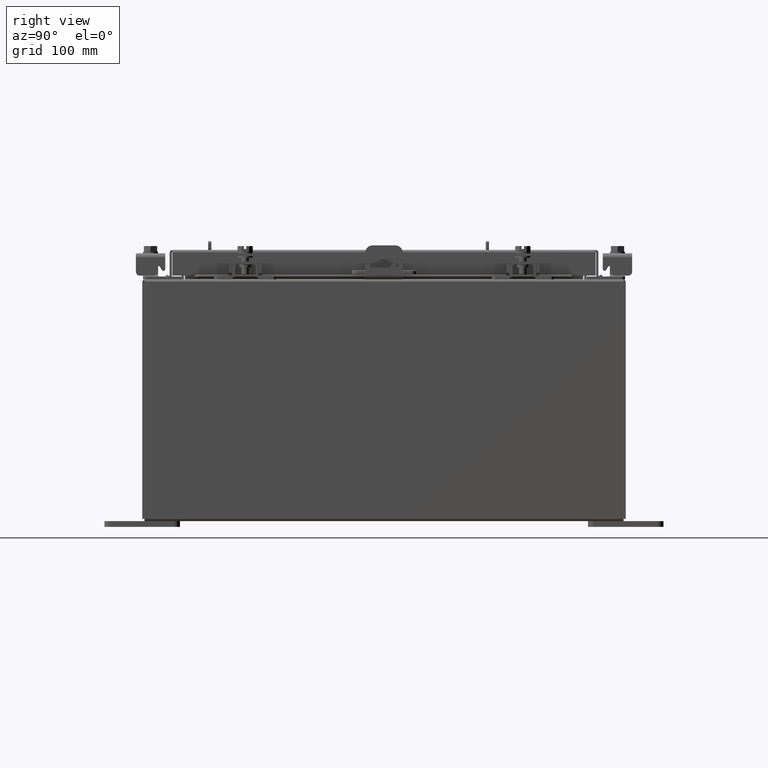
[diagram: clean part render]
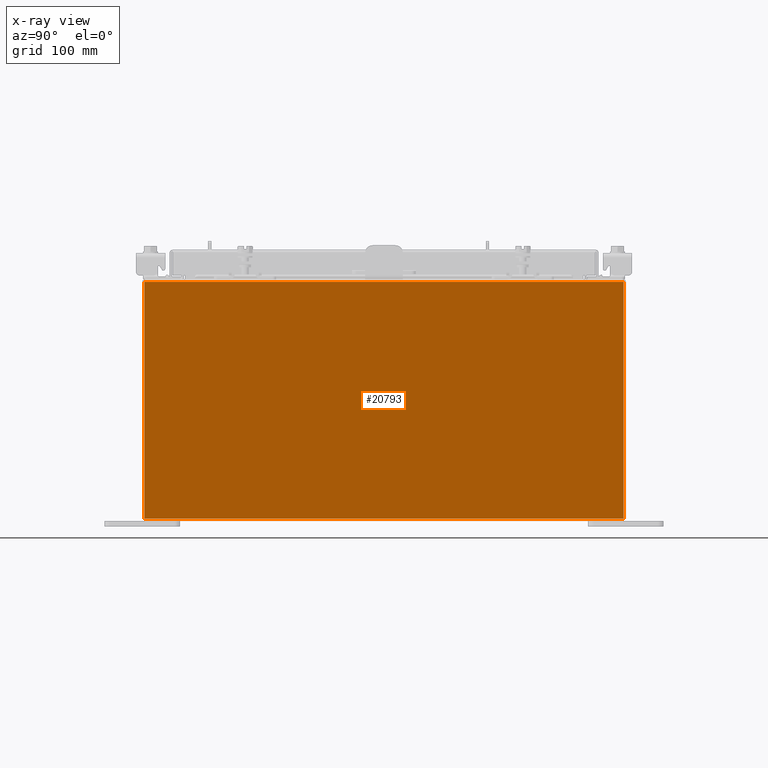
[diagram: x-ray — body ghosted, one internal face saturated and labeled with its STEP entity id]
A machine part, right view, then the same camera in x-ray: the body is ghosted and one INTERNAL B-rep face — a face not visible from any outside direction — is saturated and labeled: STEP entity #20793.
In plain terms, the highlighted planar face has unit normal (-1, 0, 0).
Its self-contained STEP definition (entity closure, byte-faithful):
#231 = DIRECTION ( 'NONE',  ( -3.446996320220387700E-015, -1.378798528088154900E-016, -1.000000000000000000 ) ) ;
#1510 = DIRECTION ( 'NONE',  ( 3.446996320220386900E-015, 0.0000000000000000000, 1.000000000000000000 ) ) ;
#2091 = CARTESIAN_POINT ( 'NONE',  ( 5.925300000000026700, 7.925299999999998200, 7.837599999999998300 ) ) ;
#2846 = VECTOR ( 'NONE', #19329, 39.37007874015748100 ) ;
#4009 = CARTESIAN_POINT ( 'NONE',  ( 5.925300000000028400, 7.925300000000000900, 7.837599999999998300 ) ) ;
#4159 = VERTEX_POINT ( 'NONE', #21701 ) ;
#6761 = EDGE_CURVE ( 'NONE', #7149, #8995, #6908, .T. ) ;
#6908 = LINE ( 'NONE', #11761, #10903 ) ;
#6948 = CARTESIAN_POINT ( 'NONE',  ( 5.925299999999999100, -7.925300000000000000, 0.01300000000000010700 ) ) ;
#7149 = VERTEX_POINT ( 'NONE', #16938 ) ;
#7808 = AXIS2_PLACEMENT_3D ( 'NONE', #20190, #11768, #1510 ) ;
#8995 = VERTEX_POINT ( 'NONE', #2091 ) ;
#9020 = ORIENTED_EDGE ( 'NONE', *, *, #6761, .F. ) ;
#10065 = PLANE ( 'NONE',  #7808 ) ;
#10903 = VECTOR ( 'NONE', #15225, 39.37007874015748100 ) ;
#11100 = ORIENTED_EDGE ( 'NONE', *, *, #16222, .F. ) ;
#11761 = CARTESIAN_POINT ( 'NONE',  ( 5.925300000000026700, 7.925299999999998200, 7.925300000000000000 ) ) ;
#11768 = DIRECTION ( 'NONE',  ( -1.000000000000000000, 0.0000000000000000000, 3.446996320220386900E-015 ) ) ;
#13087 = EDGE_CURVE ( 'NONE', #4159, #19892, #21845, .T. ) ;
#13726 = ORIENTED_EDGE ( 'NONE', *, *, #13087, .F. ) ;
#13840 = DIRECTION ( 'NONE',  ( 0.0000000000000000000, 1.000000000000000000, 0.0000000000000000000 ) ) ;
#13855 = CARTESIAN_POINT ( 'NONE',  ( 5.925299999999999100, -7.925300000000000900, -3.323030891118538400E-018 ) ) ;
#14076 = ORIENTED_EDGE ( 'NONE', *, *, #15925, .F. ) ;
#15225 = DIRECTION ( 'NONE',  ( 3.446996320220387700E-015, -0.0000000000000000000, 1.000000000000000000 ) ) ;
#15925 = EDGE_CURVE ( 'NONE', #8995, #4159, #16984, .T. ) ;
#16191 = LINE ( 'NONE', #6948, #20109 ) ;
#16222 = EDGE_CURVE ( 'NONE', #19892, #7149, #16191, .T. ) ;
#16938 = CARTESIAN_POINT ( 'NONE',  ( 5.925299999999999100, 7.925300000000000000, 0.01300000000000010700 ) ) ;
#16984 = LINE ( 'NONE', #4009, #2846 ) ;
#17684 = CARTESIAN_POINT ( 'NONE',  ( 5.925299999999999100, -7.925300000000000000, 0.01300000000000010700 ) ) ;
#19329 = DIRECTION ( 'NONE',  ( -0.0000000000000000000, -1.000000000000000000, -0.0000000000000000000 ) ) ;
#19892 = VERTEX_POINT ( 'NONE', #17684 ) ;
#20109 = VECTOR ( 'NONE', #13840, 39.37007874015748100 ) ;
#20190 = CARTESIAN_POINT ( 'NONE',  ( 5.925299999999999100, 0.0000000000000000000, -2.068197792132232400E-014 ) ) ;
#20752 = VECTOR ( 'NONE', #231, 39.37007874015748100 ) ;
#20793 = ADVANCED_FACE ( 'NONE', ( #21071 ), #10065, .T. ) ;
#21071 = FACE_OUTER_BOUND ( 'NONE', #21739, .T. ) ;
#21701 = CARTESIAN_POINT ( 'NONE',  ( 5.925300000000028400, -7.925300000000000900, 7.837599999999998300 ) ) ;
#21739 = EDGE_LOOP ( 'NONE', ( #13726, #14076, #9020, #11100 ) ) ;
#21845 = LINE ( 'NONE', #13855, #20752 ) ;